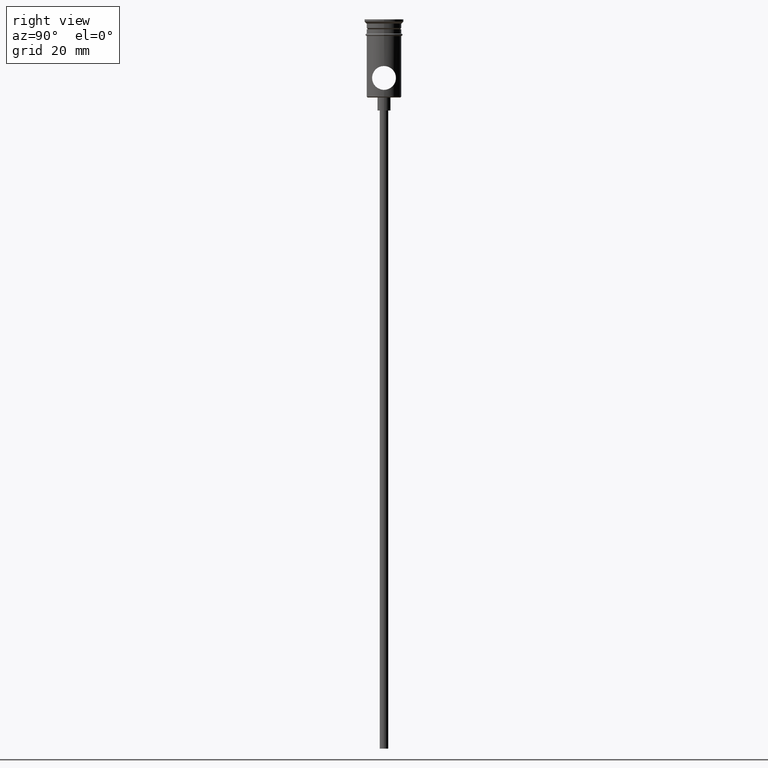
[diagram: clean part render]
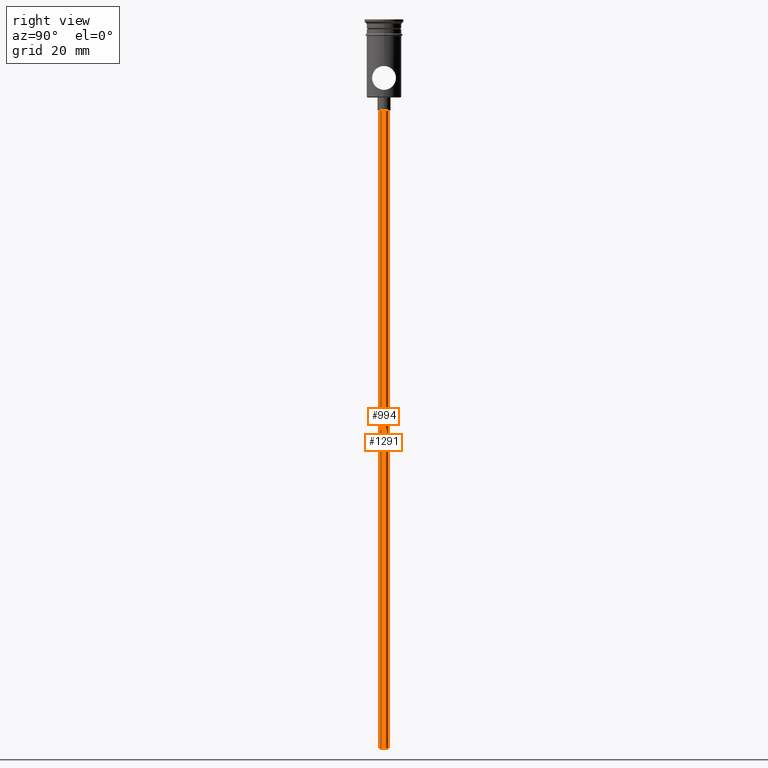
[diagram: same view with one multi-face feature highlighted, each face labeled with its STEP entity id]
A machine part, right view. The highlighted faces form ONE feature: a constant-radius fillet chain: 2 tangent blend faces with common blend radius 1 mm. The faces share edges in the B-rep.
Their STEP definitions:
[1] entity #994 (Cylinder):
#14 = CARTESIAN_POINT ( 'NONE',  ( -0.9999999999999997780, 1.224646799147352961E-16, -167.9999999999999716 ) ) ;
#90 = CARTESIAN_POINT ( 'NONE',  ( 0.9999999999999997780, 0.000000000000000000, -167.9999999999999716 ) ) ;
#116 = DIRECTION ( 'NONE',  ( 1.000000000000000000, 0.000000000000000000, 0.000000000000000000 ) ) ;
#120 = VECTOR ( 'NONE', #307, 1000.000000000000000 ) ;
#133 = EDGE_CURVE ( 'NONE', #355, #958, #971, .T. ) ;
#144 = ORIENTED_EDGE ( 'NONE', *, *, #133, .T. ) ;
#187 = EDGE_CURVE ( 'NONE', #355, #1324, #1354, .T. ) ;
#204 = CIRCLE ( 'NONE', #902, 0.9999999999999997780 ) ;
#307 = DIRECTION ( 'NONE',  ( -0.000000000000000000, -0.000000000000000000, 1.000000000000000000 ) ) ;
#320 = CARTESIAN_POINT ( 'NONE',  ( 0.000000000000000000, 0.000000000000000000, -167.9999999999999716 ) ) ;
#355 = VERTEX_POINT ( 'NONE', #90 ) ;
#387 = DIRECTION ( 'NONE',  ( -0.000000000000000000, -0.000000000000000000, 1.000000000000000000 ) ) ;
#452 = VERTEX_POINT ( 'NONE', #1183 ) ;
#501 = ORIENTED_EDGE ( 'NONE', *, *, #187, .F. ) ;
#590 = CARTESIAN_POINT ( 'NONE',  ( -0.9999999999999997780, 1.224646799147352961E-16, -167.9999999999999716 ) ) ;
#680 = DIRECTION ( 'NONE',  ( 0.000000000000000000, 0.000000000000000000, -1.000000000000000000 ) ) ;
#763 = DIRECTION ( 'NONE',  ( -1.000000000000000000, 0.000000000000000000, 0.000000000000000000 ) ) ;
#785 = DIRECTION ( 'NONE',  ( -0.000000000000000000, -0.000000000000000000, 1.000000000000000000 ) ) ;
#824 = LINE ( 'NONE', #590, #1406 ) ;
#872 = CARTESIAN_POINT ( 'NONE',  ( 0.000000000000000000, 0.000000000000000000, -167.9999999999999716 ) ) ;
#902 = AXIS2_PLACEMENT_3D ( 'NONE', #1091, #680, #1097 ) ;
#939 = ORIENTED_EDGE ( 'NONE', *, *, #1398, .F. ) ;
#958 = VERTEX_POINT ( 'NONE', #1304 ) ;
#971 = LINE ( 'NONE', #1173, #120 ) ;
#973 = EDGE_CURVE ( 'NONE', #958, #452, #204, .T. ) ;
#975 = CYLINDRICAL_SURFACE ( 'NONE', #1308, 0.9999999999999997780 ) ;
#984 = FACE_OUTER_BOUND ( 'NONE', #1276, .T. ) ;
#987 = AXIS2_PLACEMENT_3D ( 'NONE', #320, #1295, #763 ) ;
#994 = ADVANCED_FACE ( 'NONE', ( #984 ), #975, .T. ) ;
#1091 = CARTESIAN_POINT ( 'NONE',  ( 0.000000000000000000, 0.000000000000000000, -20.99999999999999645 ) ) ;
#1097 = DIRECTION ( 'NONE',  ( -1.000000000000000000, 0.000000000000000000, 0.000000000000000000 ) ) ;
#1139 = ORIENTED_EDGE ( 'NONE', *, *, #973, .T. ) ;
#1173 = CARTESIAN_POINT ( 'NONE',  ( 0.9999999999999997780, 0.000000000000000000, -167.9999999999999716 ) ) ;
#1183 = CARTESIAN_POINT ( 'NONE',  ( -0.9999999999999997780, 1.224646799147352961E-16, -20.99999999999999645 ) ) ;
#1276 = EDGE_LOOP ( 'NONE', ( #939, #501, #144, #1139 ) ) ;
#1295 = DIRECTION ( 'NONE',  ( 0.000000000000000000, 0.000000000000000000, -1.000000000000000000 ) ) ;
#1304 = CARTESIAN_POINT ( 'NONE',  ( 0.9999999999999997780, 0.000000000000000000, -20.99999999999999645 ) ) ;
#1308 = AXIS2_PLACEMENT_3D ( 'NONE', #872, #785, #116 ) ;
#1324 = VERTEX_POINT ( 'NONE', #14 ) ;
#1354 = CIRCLE ( 'NONE', #987, 0.9999999999999997780 ) ;
#1398 = EDGE_CURVE ( 'NONE', #1324, #452, #824, .T. ) ;
#1406 = VECTOR ( 'NONE', #387, 1000.000000000000000 ) ;
[2] entity #1291 (Cylinder):
#14 = CARTESIAN_POINT ( 'NONE',  ( -0.9999999999999997780, 1.224646799147352961E-16, -167.9999999999999716 ) ) ;
#82 = ORIENTED_EDGE ( 'NONE', *, *, #517, .T. ) ;
#90 = CARTESIAN_POINT ( 'NONE',  ( 0.9999999999999997780, 0.000000000000000000, -167.9999999999999716 ) ) ;
#93 = DIRECTION ( 'NONE',  ( 0.000000000000000000, 0.000000000000000000, -1.000000000000000000 ) ) ;
#120 = VECTOR ( 'NONE', #307, 1000.000000000000000 ) ;
#133 = EDGE_CURVE ( 'NONE', #355, #958, #971, .T. ) ;
#142 = ORIENTED_EDGE ( 'NONE', *, *, #1398, .T. ) ;
#234 = CYLINDRICAL_SURFACE ( 'NONE', #729, 0.9999999999999997780 ) ;
#236 = CARTESIAN_POINT ( 'NONE',  ( 0.000000000000000000, 0.000000000000000000, -20.99999999999999645 ) ) ;
#269 = AXIS2_PLACEMENT_3D ( 'NONE', #650, #396, #1267 ) ;
#307 = DIRECTION ( 'NONE',  ( -0.000000000000000000, -0.000000000000000000, 1.000000000000000000 ) ) ;
#353 = DIRECTION ( 'NONE',  ( -0.000000000000000000, -0.000000000000000000, 1.000000000000000000 ) ) ;
#355 = VERTEX_POINT ( 'NONE', #90 ) ;
#357 = AXIS2_PLACEMENT_3D ( 'NONE', #236, #93, #1301 ) ;
#373 = EDGE_CURVE ( 'NONE', #1324, #355, #1262, .T. ) ;
#387 = DIRECTION ( 'NONE',  ( -0.000000000000000000, -0.000000000000000000, 1.000000000000000000 ) ) ;
#396 = DIRECTION ( 'NONE',  ( 0.000000000000000000, 0.000000000000000000, -1.000000000000000000 ) ) ;
#452 = VERTEX_POINT ( 'NONE', #1183 ) ;
#517 = EDGE_CURVE ( 'NONE', #452, #958, #521, .T. ) ;
#521 = CIRCLE ( 'NONE', #357, 0.9999999999999997780 ) ;
#534 = ORIENTED_EDGE ( 'NONE', *, *, #373, .F. ) ;
#568 = CARTESIAN_POINT ( 'NONE',  ( 0.000000000000000000, 0.000000000000000000, -167.9999999999999716 ) ) ;
#590 = CARTESIAN_POINT ( 'NONE',  ( -0.9999999999999997780, 1.224646799147352961E-16, -167.9999999999999716 ) ) ;
#650 = CARTESIAN_POINT ( 'NONE',  ( 0.000000000000000000, 0.000000000000000000, -167.9999999999999716 ) ) ;
#729 = AXIS2_PLACEMENT_3D ( 'NONE', #568, #353, #1412 ) ;
#774 = FACE_OUTER_BOUND ( 'NONE', #1134, .T. ) ;
#824 = LINE ( 'NONE', #590, #1406 ) ;
#958 = VERTEX_POINT ( 'NONE', #1304 ) ;
#971 = LINE ( 'NONE', #1173, #120 ) ;
#1134 = EDGE_LOOP ( 'NONE', ( #534, #142, #82, #1256 ) ) ;
#1173 = CARTESIAN_POINT ( 'NONE',  ( 0.9999999999999997780, 0.000000000000000000, -167.9999999999999716 ) ) ;
#1183 = CARTESIAN_POINT ( 'NONE',  ( -0.9999999999999997780, 1.224646799147352961E-16, -20.99999999999999645 ) ) ;
#1256 = ORIENTED_EDGE ( 'NONE', *, *, #133, .F. ) ;
#1262 = CIRCLE ( 'NONE', #269, 0.9999999999999997780 ) ;
#1267 = DIRECTION ( 'NONE',  ( -1.000000000000000000, 0.000000000000000000, 0.000000000000000000 ) ) ;
#1291 = ADVANCED_FACE ( 'NONE', ( #774 ), #234, .T. ) ;
#1301 = DIRECTION ( 'NONE',  ( -1.000000000000000000, 0.000000000000000000, 0.000000000000000000 ) ) ;
#1304 = CARTESIAN_POINT ( 'NONE',  ( 0.9999999999999997780, 0.000000000000000000, -20.99999999999999645 ) ) ;
#1324 = VERTEX_POINT ( 'NONE', #14 ) ;
#1398 = EDGE_CURVE ( 'NONE', #1324, #452, #824, .T. ) ;
#1406 = VECTOR ( 'NONE', #387, 1000.000000000000000 ) ;
#1412 = DIRECTION ( 'NONE',  ( 1.000000000000000000, 0.000000000000000000, 0.000000000000000000 ) ) ;